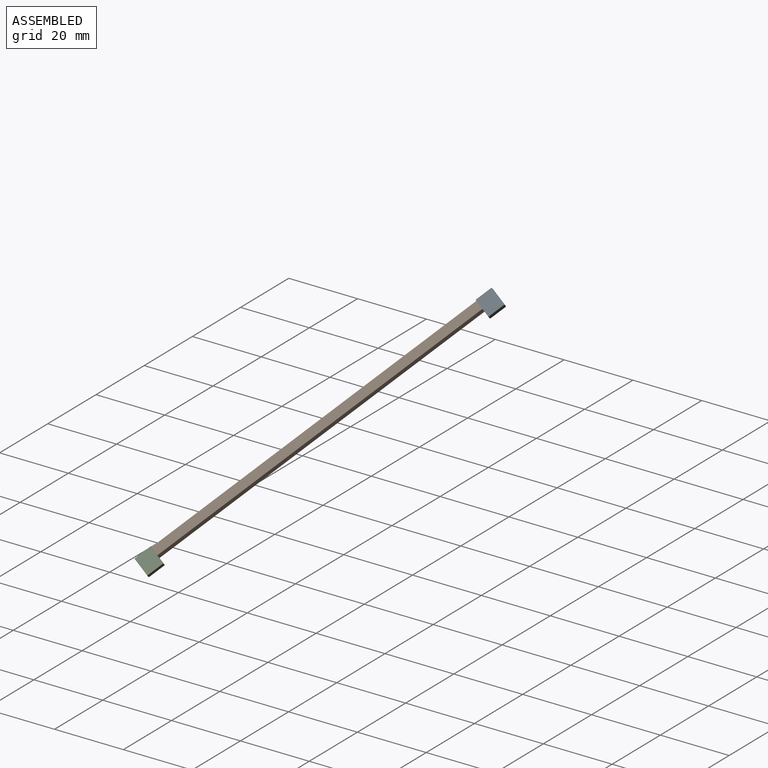
[diagram: assembled view]
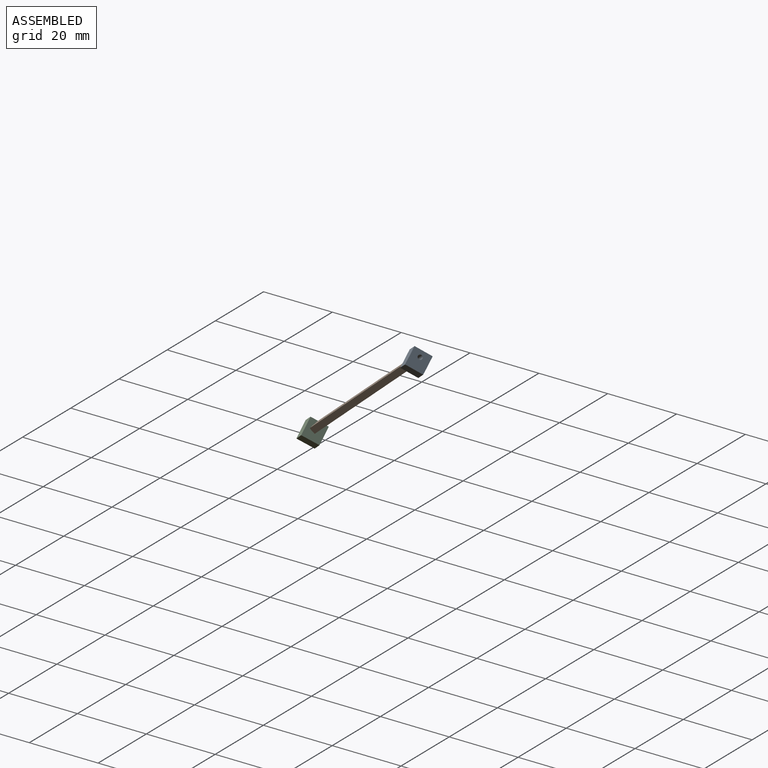
[diagram: assembled view, second angle]
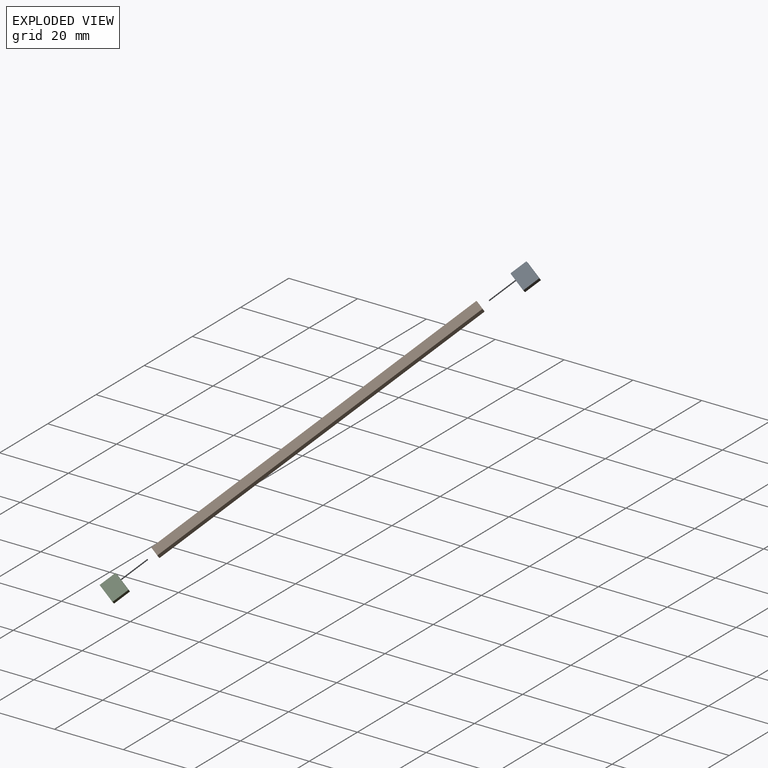
[diagram: exploded view]
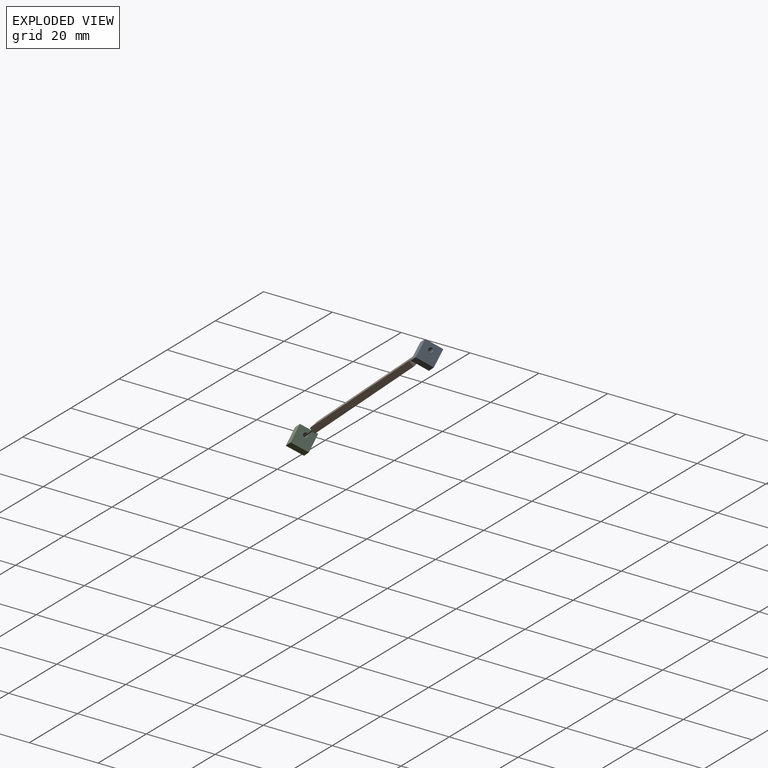
[diagram: exploded view, second angle]
ASSEMBLY  parts=3 mates=2
PART A: 7 faces, bbox 5x4.8x5.1 mm
  f0: plane 5.1x5.01mm, normal (0,-1,0), area 24.3mm2, adj f1,f3,f4,f5,f6
  f1: plane 5.1x4.77mm, normal (1,0,0), area 24.3mm2, adj f0,f2,f4,f5
  f2: plane 5.1x5.01mm, normal (0,1,0), area 24.3mm2, adj f1,f3,f4,f5,f6
  f3: plane 5.1x4.77mm, normal (-1,0,0), area 24.3mm2, adj f0,f2,f4,f5
  f4: plane 5.01x4.77mm, normal (0,0,1), area 23.9mm2, adj f0,f1,f2,f3
  f5: plane 5.01x4.77mm, normal (0,0,-1), area 23.9mm2, adj f0,f1,f2,f3
  f6: cylinder r=0.64mm len=4.77mm, axis (0,-1,0), area 19mm2, adj f0,f2
PART B: 7 faces, bbox 2.7x97.2x1.8 mm
  f0: plane 2.69x1.8mm, normal (0,1,0), area 3.6mm2, adj f1,f3,f4,f5,f6
  f1: plane 97.15x1.8mm, normal (-1,0,0), area 175.2mm2, adj f0,f2,f4,f5
  f2: plane 2.69x1.8mm, normal (0,-1,0), area 3.6mm2, adj f1,f3,f4,f5,f6
  f3: plane 97.15x1.8mm, normal (1,0,0), area 175.2mm2, adj f0,f2,f4,f5
  f4: plane 97.15x2.69mm, normal (0,0,1), area 261.2mm2, adj f0,f1,f2,f3
  f5: plane 97.15x2.69mm, normal (0,0,-1), area 261.2mm2, adj f0,f1,f2,f3
  f6: cylinder r=0.64mm len=97.15mm, axis (0,-1,0), area 387.6mm2, adj f0,f2
PART C: same geometry as A
PLACE A rot(axis=(0.29,-0.67,-0.68),68deg) t=(-16.64,-48.53,-26.87)mm
PLACE B rot(axis=(0.78,0.37,-0.5),53.1deg) t=(0.39,-27.83,-66.98)mm
PLACE C rot(axis=(0.29,-0.67,-0.69),67.5deg) t=(-68.56,-115.38,-83.67)mm
MATE revolute C.f6 <-> B.f6  axis (0.51,0.66,0.55) through (-60.41,-48.94,-74.53)mm
MATE revolute B.f6 <-> A.f6  axis (0.51,0.66,0.55) through (-10.52,14.78,-20.77)mm
